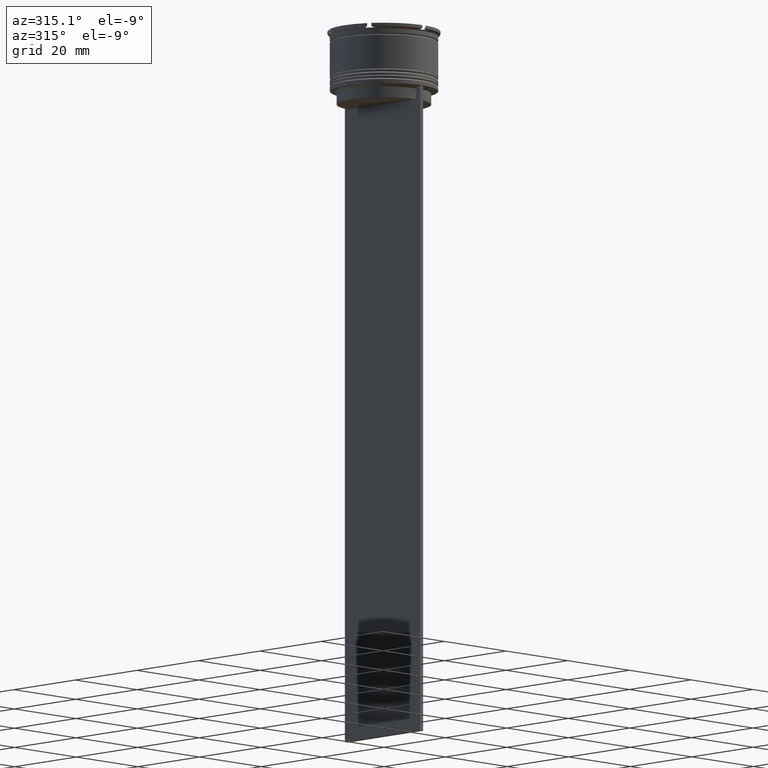
[diagram: clean part render]
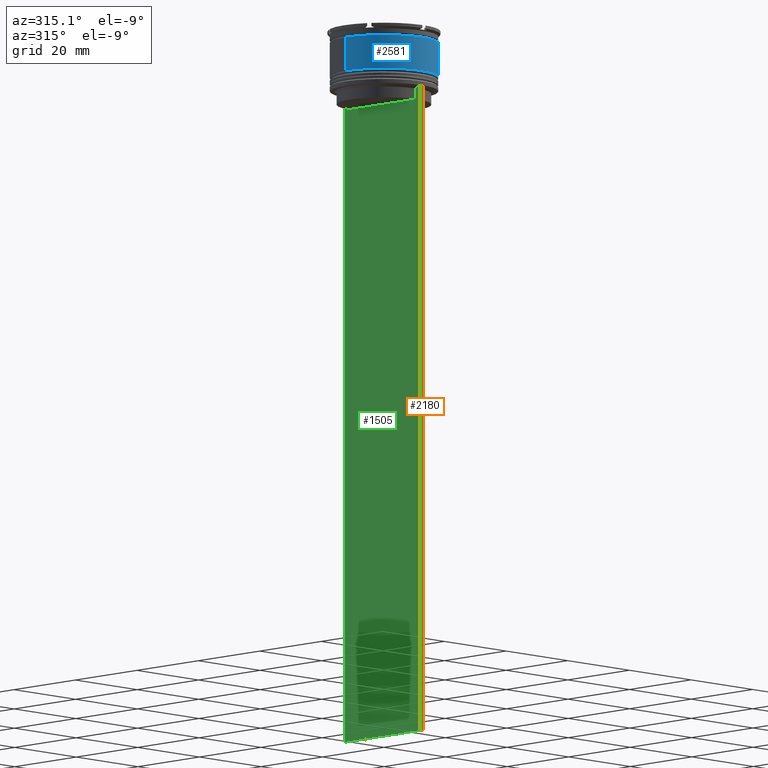
[diagram: same view with three faces highlighted in distinct colors, each labeled with its STEP entity id]
A machine part, auxiliary view with three faces highlighted in distinct colors.
Their STEP definitions:

[orange] entity #2180 — the highlighted planar face has unit normal (0, -1, -0).
#19 = ORIENTED_EDGE ( 'NONE', *, *, #294, .F. ) ;
#140 = LINE ( 'NONE', #559, #1780 ) ;
#141 = AXIS2_PLACEMENT_3D ( 'NONE', #709, #908, #1562 ) ;
#289 = DIRECTION ( 'NONE',  ( 1.000000000000000000, 0.000000000000000000, 0.000000000000000000 ) ) ;
#294 = EDGE_CURVE ( 'NONE', #909, #2537, #140, .T. ) ;
#479 = PLANE ( 'NONE',  #141 ) ;
#533 = ORIENTED_EDGE ( 'NONE', *, *, #1498, .T. ) ;
#559 = CARTESIAN_POINT ( 'NONE',  ( 0.5000000000000002220, -12.25000000000000711, -14.00000000000000178 ) ) ;
#690 = CARTESIAN_POINT ( 'NONE',  ( -0.4999999999999997780, -12.25000000000000711, -163.9999999999999716 ) ) ;
#709 = CARTESIAN_POINT ( 'NONE',  ( 0.5000000000000002220, -12.25000000000000711, 10.52039967047845792 ) ) ;
#763 = CARTESIAN_POINT ( 'NONE',  ( -0.4999999999999997780, -12.25000000000000711, 10.52039967047845792 ) ) ;
#783 = CARTESIAN_POINT ( 'NONE',  ( 0.5000000000000002220, -12.25000000000000711, 10.52039967047845792 ) ) ;
#788 = DIRECTION ( 'NONE',  ( 0.000000000000000000, 0.000000000000000000, -1.000000000000000000 ) ) ;
#908 = DIRECTION ( 'NONE',  ( 0.000000000000000000, -1.000000000000000000, -0.000000000000000000 ) ) ;
#909 = VERTEX_POINT ( 'NONE', #1000 ) ;
#1000 = CARTESIAN_POINT ( 'NONE',  ( -0.4999999999999997780, -12.25000000000000711, -14.00000000000000178 ) ) ;
#1026 = VECTOR ( 'NONE', #1843, 1000.000000000000000 ) ;
#1291 = VECTOR ( 'NONE', #788, 1000.000000000000000 ) ;
#1311 = ORIENTED_EDGE ( 'NONE', *, *, #1915, .F. ) ;
#1432 = LINE ( 'NONE', #783, #1026 ) ;
#1498 = EDGE_CURVE ( 'NONE', #909, #2487, #1828, .T. ) ;
#1526 = FACE_OUTER_BOUND ( 'NONE', #2171, .T. ) ;
#1562 = DIRECTION ( 'NONE',  ( 0.000000000000000000, 0.000000000000000000, -1.000000000000000000 ) ) ;
#1732 = ORIENTED_EDGE ( 'NONE', *, *, #2757, .F. ) ;
#1780 = VECTOR ( 'NONE', #289, 1000.000000000000000 ) ;
#1828 = LINE ( 'NONE', #763, #1291 ) ;
#1843 = DIRECTION ( 'NONE',  ( 0.000000000000000000, 0.000000000000000000, -1.000000000000000000 ) ) ;
#1862 = LINE ( 'NONE', #2612, #2012 ) ;
#1915 = EDGE_CURVE ( 'NONE', #2537, #2320, #1432, .T. ) ;
#2012 = VECTOR ( 'NONE', #2782, 1000.000000000000000 ) ;
#2171 = EDGE_LOOP ( 'NONE', ( #19, #533, #1732, #1311 ) ) ;
#2180 = ADVANCED_FACE ( 'NONE', ( #1526 ), #479, .T. ) ;
#2320 = VERTEX_POINT ( 'NONE', #2365 ) ;
#2365 = CARTESIAN_POINT ( 'NONE',  ( 0.5000000000000002220, -12.25000000000000711, -163.9999999999999716 ) ) ;
#2487 = VERTEX_POINT ( 'NONE', #690 ) ;
#2537 = VERTEX_POINT ( 'NONE', #2626 ) ;
#2612 = CARTESIAN_POINT ( 'NONE',  ( 0.5000000000000002220, -12.25000000000000711, -163.9999999999999716 ) ) ;
#2626 = CARTESIAN_POINT ( 'NONE',  ( 0.5000000000000002220, -12.25000000000000711, -14.00000000000000178 ) ) ;
#2757 = EDGE_CURVE ( 'NONE', #2320, #2487, #1862, .T. ) ;
#2782 = DIRECTION ( 'NONE',  ( -1.000000000000000000, 0.000000000000000000, 0.000000000000000000 ) ) ;

[blue] entity #2581 — the highlighted cylindrical surface (partial cylindrical patch) has radius 12.5 mm, axis along (-0, -0, 1).
#39 = DIRECTION ( 'NONE',  ( -0.000000000000000000, -0.000000000000000000, 1.000000000000000000 ) ) ;
#43 = CIRCLE ( 'NONE', #2520, 12.50000000000000178 ) ;
#47 = CARTESIAN_POINT ( 'NONE',  ( 0.000000000000000000, 0.000000000000000000, -10.50000000000000178 ) ) ;
#275 = ORIENTED_EDGE ( 'NONE', *, *, #2210, .F. ) ;
#292 = VERTEX_POINT ( 'NONE', #778 ) ;
#359 = CARTESIAN_POINT ( 'NONE',  ( 12.50000000000000000, 0.000000000000000000, 0.000000000000000000 ) ) ;
#371 = DIRECTION ( 'NONE',  ( 1.000000000000000000, 0.000000000000000000, 0.000000000000000000 ) ) ;
#392 = DIRECTION ( 'NONE',  ( 1.000000000000000000, 0.000000000000000000, 0.000000000000000000 ) ) ;
#406 = CIRCLE ( 'NONE', #1289, 12.49999999999999822 ) ;
#459 = VECTOR ( 'NONE', #2686, 1000.000000000000000 ) ;
#601 = DIRECTION ( 'NONE',  ( -0.000000000000000000, -0.000000000000000000, 1.000000000000000000 ) ) ;
#665 = DIRECTION ( 'NONE',  ( 1.000000000000000000, 0.000000000000000000, 0.000000000000000000 ) ) ;
#764 = ORIENTED_EDGE ( 'NONE', *, *, #1257, .T. ) ;
#778 = CARTESIAN_POINT ( 'NONE',  ( 12.49999999999999822, 0.000000000000000000, -2.699999999999999289 ) ) ;
#835 = CARTESIAN_POINT ( 'NONE',  ( -12.50000000000000355, 1.530808498934191916E-15, -10.50000000000000178 ) ) ;
#899 = CARTESIAN_POINT ( 'NONE',  ( 12.50000000000000178, 0.000000000000000000, -10.50000000000000178 ) ) ;
#1092 = EDGE_CURVE ( 'NONE', #1984, #1717, #43, .T. ) ;
#1116 = EDGE_CURVE ( 'NONE', #1460, #292, #406, .T. ) ;
#1174 = CARTESIAN_POINT ( 'NONE',  ( -12.50000000000000000, 1.530808498934191521E-15, 0.000000000000000000 ) ) ;
#1257 = EDGE_CURVE ( 'NONE', #1717, #292, #2287, .T. ) ;
#1289 = AXIS2_PLACEMENT_3D ( 'NONE', #2536, #601, #392 ) ;
#1450 = DIRECTION ( 'NONE',  ( -0.000000000000000000, -0.000000000000000000, 1.000000000000000000 ) ) ;
#1452 = EDGE_LOOP ( 'NONE', ( #275, #2675, #764, #2334 ) ) ;
#1460 = VERTEX_POINT ( 'NONE', #1860 ) ;
#1717 = VERTEX_POINT ( 'NONE', #899 ) ;
#1734 = CYLINDRICAL_SURFACE ( 'NONE', #2689, 12.50000000000000000 ) ;
#1860 = CARTESIAN_POINT ( 'NONE',  ( -12.49999999999999822, 1.530808498934191324E-15, -2.699999999999999289 ) ) ;
#1944 = FACE_OUTER_BOUND ( 'NONE', #1452, .T. ) ;
#1984 = VERTEX_POINT ( 'NONE', #835 ) ;
#2210 = EDGE_CURVE ( 'NONE', #1984, #1460, #2706, .T. ) ;
#2287 = LINE ( 'NONE', #359, #2605 ) ;
#2303 = DIRECTION ( 'NONE',  ( -0.000000000000000000, -0.000000000000000000, 1.000000000000000000 ) ) ;
#2334 = ORIENTED_EDGE ( 'NONE', *, *, #1116, .F. ) ;
#2520 = AXIS2_PLACEMENT_3D ( 'NONE', #47, #2303, #371 ) ;
#2536 = CARTESIAN_POINT ( 'NONE',  ( 0.000000000000000000, 0.000000000000000000, -2.699999999999999289 ) ) ;
#2581 = ADVANCED_FACE ( 'NONE', ( #1944 ), #1734, .T. ) ;
#2602 = CARTESIAN_POINT ( 'NONE',  ( 0.000000000000000000, 0.000000000000000000, 0.000000000000000000 ) ) ;
#2605 = VECTOR ( 'NONE', #1450, 1000.000000000000000 ) ;
#2675 = ORIENTED_EDGE ( 'NONE', *, *, #1092, .T. ) ;
#2686 = DIRECTION ( 'NONE',  ( -0.000000000000000000, -0.000000000000000000, 1.000000000000000000 ) ) ;
#2689 = AXIS2_PLACEMENT_3D ( 'NONE', #2602, #39, #665 ) ;
#2706 = LINE ( 'NONE', #1174, #459 ) ;

[green] entity #1505 — the highlighted planar face has unit normal (-1, 0, 0).
#63 = ORIENTED_EDGE ( 'NONE', *, *, #2732, .F. ) ;
#119 = CARTESIAN_POINT ( 'NONE',  ( -0.4999999999999997780, -10.88852607105296322, -14.50000000000000000 ) ) ;
#135 = VERTEX_POINT ( 'NONE', #2627 ) ;
#195 = LINE ( 'NONE', #416, #499 ) ;
#215 = ORIENTED_EDGE ( 'NONE', *, *, #2198, .F. ) ;
#216 = CARTESIAN_POINT ( 'NONE',  ( -0.4999999999999997780, -11.38902980942626719, -14.00000000000000178 ) ) ;
#309 = CARTESIAN_POINT ( 'NONE',  ( -0.4999999999999997780, -12.25000000000000711, -163.9999999999999716 ) ) ;
#310 = VERTEX_POINT ( 'NONE', #119 ) ;
#321 = CARTESIAN_POINT ( 'NONE',  ( -0.4999999999999997780, -12.25000000000000711, -14.00000000000000178 ) ) ;
#332 = DIRECTION ( 'NONE',  ( -1.000000000000000000, 0.000000000000000000, 0.000000000000000000 ) ) ;
#377 = ORIENTED_EDGE ( 'NONE', *, *, #1904, .T. ) ;
#390 = FACE_OUTER_BOUND ( 'NONE', #1630, .T. ) ;
#410 = EDGE_CURVE ( 'NONE', #310, #2764, #784, .T. ) ;
#416 = CARTESIAN_POINT ( 'NONE',  ( -0.4999999999999997780, -12.25000000000000711, -14.00000000000000178 ) ) ;
#429 = EDGE_CURVE ( 'NONE', #888, #135, #1279, .T. ) ;
#475 = CARTESIAN_POINT ( 'NONE',  ( -0.4999999999999997780, 12.24999999999999289, -14.00000000000000178 ) ) ;
#485 = EDGE_CURVE ( 'NONE', #135, #1321, #603, .T. ) ;
#499 = VECTOR ( 'NONE', #1673, 1000.000000000000000 ) ;
#522 = ORIENTED_EDGE ( 'NONE', *, *, #429, .F. ) ;
#543 = CARTESIAN_POINT ( 'NONE',  ( -0.4999999999999997780, -12.25000000000000711, 10.52039967047845792 ) ) ;
#590 = DIRECTION ( 'NONE',  ( 0.000000000000000000, 0.000000000000000000, -1.000000000000000000 ) ) ;
#603 = LINE ( 'NONE', #2787, #701 ) ;
#608 = ORIENTED_EDGE ( 'NONE', *, *, #1634, .F. ) ;
#619 = CARTESIAN_POINT ( 'NONE',  ( -0.4999999999999997780, -10.88852607105296322, 0.000000000000000000 ) ) ;
#631 = VECTOR ( 'NONE', #1363, 1000.000000000000000 ) ;
#690 = CARTESIAN_POINT ( 'NONE',  ( -0.4999999999999997780, -12.25000000000000711, -163.9999999999999716 ) ) ;
#701 = VECTOR ( 'NONE', #590, 1000.000000000000000 ) ;
#735 = CARTESIAN_POINT ( 'NONE',  ( -0.4999999999999997780, -11.22219891450652973, -14.16667035398018903 ) ) ;
#740 = LINE ( 'NONE', #2486, #2118 ) ;
#763 = CARTESIAN_POINT ( 'NONE',  ( -0.4999999999999997780, -12.25000000000000711, 10.52039967047845792 ) ) ;
#784 = B_SPLINE_CURVE_WITH_KNOTS ( 'NONE', 3,
 ( #2703, #2236, #735, #1588 ),
 .UNSPECIFIED., .F., .F.,
 ( 4, 4 ),
 ( 0.05041323384703224469, 0.05112713601261603680 ),
 .UNSPECIFIED. ) ;
#788 = DIRECTION ( 'NONE',  ( 0.000000000000000000, 0.000000000000000000, -1.000000000000000000 ) ) ;
#809 = CARTESIAN_POINT ( 'NONE',  ( -0.4999999999999997780, 11.05536450345590538, -14.33333719074559376 ) ) ;
#888 = VERTEX_POINT ( 'NONE', #2710 ) ;
#909 = VERTEX_POINT ( 'NONE', #1000 ) ;
#987 = LINE ( 'NONE', #309, #631 ) ;
#1000 = CARTESIAN_POINT ( 'NONE',  ( -0.4999999999999997780, -12.25000000000000711, -14.00000000000000178 ) ) ;
#1023 = LINE ( 'NONE', #1871, #1610 ) ;
#1163 = ORIENTED_EDGE ( 'NONE', *, *, #1493, .F. ) ;
#1170 = DIRECTION ( 'NONE',  ( 0.000000000000000000, -1.000000000000000000, 0.000000000000000000 ) ) ;
#1184 = ORIENTED_EDGE ( 'NONE', *, *, #1986, .F. ) ;
#1237 = CARTESIAN_POINT ( 'NONE',  ( -0.4999999999999997780, 12.24999999999999289, -163.9999999999999716 ) ) ;
#1279 = B_SPLINE_CURVE_WITH_KNOTS ( 'NONE', 3,
 ( #2123, #2295, #809, #1424 ),
 .UNSPECIFIED., .F., .F.,
 ( 4, 4 ),
 ( 0.01935560801904634073, 0.02006307108468586772 ),
 .UNSPECIFIED. ) ;
#1291 = VECTOR ( 'NONE', #788, 1000.000000000000000 ) ;
#1321 = VERTEX_POINT ( 'NONE', #2456 ) ;
#1363 = DIRECTION ( 'NONE',  ( 0.000000000000000000, 1.000000000000000000, 0.000000000000000000 ) ) ;
#1424 = CARTESIAN_POINT ( 'NONE',  ( -0.4999999999999997780, 10.88852607105296322, -14.50000000000000000 ) ) ;
#1493 = EDGE_CURVE ( 'NONE', #1321, #1612, #1023, .T. ) ;
#1498 = EDGE_CURVE ( 'NONE', #909, #2487, #1828, .T. ) ;
#1505 = ADVANCED_FACE ( 'NONE', ( #390 ), #1641, .T. ) ;
#1588 = CARTESIAN_POINT ( 'NONE',  ( -0.4999999999999997780, -11.38902980942626719, -14.00000000000000178 ) ) ;
#1593 = DIRECTION ( 'NONE',  ( 0.000000000000000000, 0.000000000000000000, -1.000000000000000000 ) ) ;
#1610 = VECTOR ( 'NONE', #1619, 1000.000000000000000 ) ;
#1612 = VERTEX_POINT ( 'NONE', #2545 ) ;
#1619 = DIRECTION ( 'NONE',  ( 0.000000000000000000, -1.000000000000000000, 0.000000000000000000 ) ) ;
#1620 = ORIENTED_EDGE ( 'NONE', *, *, #1498, .F. ) ;
#1630 = EDGE_LOOP ( 'NONE', ( #522, #63, #377, #215, #1620, #1184, #1840, #608, #1163, #2189 ) ) ;
#1634 = EDGE_CURVE ( 'NONE', #1612, #310, #1939, .T. ) ;
#1641 = PLANE ( 'NONE',  #2203 ) ;
#1673 = DIRECTION ( 'NONE',  ( 0.000000000000000000, -1.000000000000000000, 0.000000000000000000 ) ) ;
#1828 = LINE ( 'NONE', #763, #1291 ) ;
#1840 = ORIENTED_EDGE ( 'NONE', *, *, #410, .F. ) ;
#1871 = CARTESIAN_POINT ( 'NONE',  ( -0.4999999999999997780, 10.90000000000000213, -17.00000000000000000 ) ) ;
#1877 = VECTOR ( 'NONE', #1170, 1000.000000000000000 ) ;
#1904 = EDGE_CURVE ( 'NONE', #2518, #2343, #740, .T. ) ;
#1927 = DIRECTION ( 'NONE',  ( -0.000000000000000000, -0.000000000000000000, 1.000000000000000000 ) ) ;
#1939 = LINE ( 'NONE', #619, #2427 ) ;
#1986 = EDGE_CURVE ( 'NONE', #2764, #909, #195, .T. ) ;
#2118 = VECTOR ( 'NONE', #1593, 1000.000000000000000 ) ;
#2123 = CARTESIAN_POINT ( 'NONE',  ( -0.4999999999999997780, 11.38902980942626719, -14.00000000000000178 ) ) ;
#2189 = ORIENTED_EDGE ( 'NONE', *, *, #485, .F. ) ;
#2198 = EDGE_CURVE ( 'NONE', #2487, #2343, #987, .T. ) ;
#2203 = AXIS2_PLACEMENT_3D ( 'NONE', #543, #332, #2274 ) ;
#2236 = CARTESIAN_POINT ( 'NONE',  ( -0.4999999999999997780, -11.05536450423839057, -14.33333718996393280 ) ) ;
#2252 = LINE ( 'NONE', #321, #1877 ) ;
#2274 = DIRECTION ( 'NONE',  ( 0.000000000000000000, 0.000000000000000000, 1.000000000000000000 ) ) ;
#2295 = CARTESIAN_POINT ( 'NONE',  ( -0.4999999999999997780, 11.22219891375843304, -14.16667035472756808 ) ) ;
#2343 = VERTEX_POINT ( 'NONE', #1237 ) ;
#2427 = VECTOR ( 'NONE', #1927, 1000.000000000000000 ) ;
#2456 = CARTESIAN_POINT ( 'NONE',  ( -0.4999999999999997780, 10.88852607105296144, -17.00000000000000000 ) ) ;
#2486 = CARTESIAN_POINT ( 'NONE',  ( -0.4999999999999997780, 12.24999999999999289, 10.52039967047845792 ) ) ;
#2487 = VERTEX_POINT ( 'NONE', #690 ) ;
#2518 = VERTEX_POINT ( 'NONE', #475 ) ;
#2545 = CARTESIAN_POINT ( 'NONE',  ( -0.4999999999999997780, -10.88852607105296144, -17.00000000000000000 ) ) ;
#2627 = CARTESIAN_POINT ( 'NONE',  ( -0.4999999999999997780, 10.88852607105296322, -14.50000000000000000 ) ) ;
#2703 = CARTESIAN_POINT ( 'NONE',  ( -0.4999999999999997780, -10.88852607105296322, -14.50000000000000000 ) ) ;
#2710 = CARTESIAN_POINT ( 'NONE',  ( -0.4999999999999997780, 11.38902980942626719, -14.00000000000000178 ) ) ;
#2732 = EDGE_CURVE ( 'NONE', #2518, #888, #2252, .T. ) ;
#2764 = VERTEX_POINT ( 'NONE', #216 ) ;
#2787 = CARTESIAN_POINT ( 'NONE',  ( -0.4999999999999997780, 10.88852607105296322, 0.000000000000000000 ) ) ;